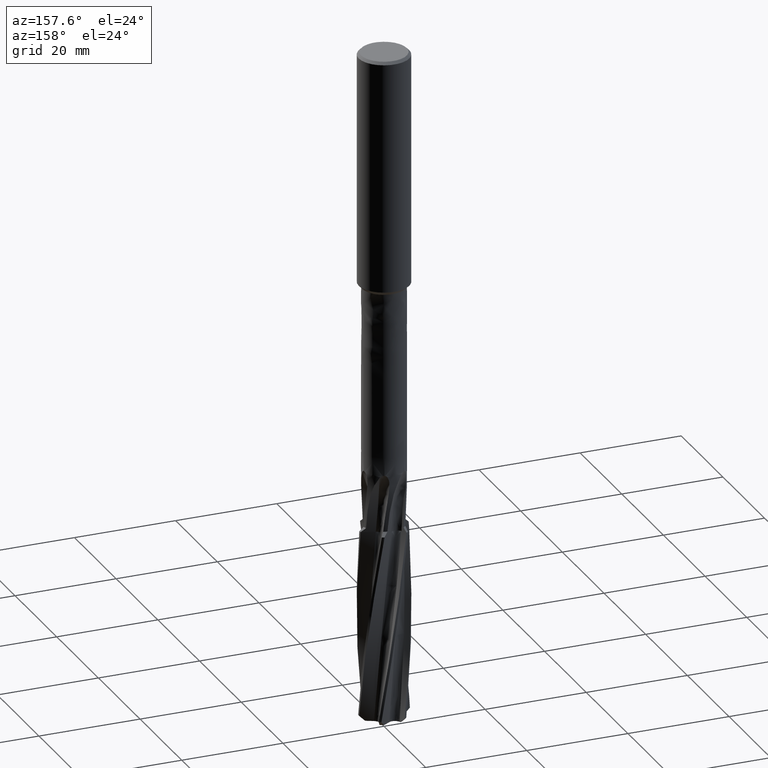
[diagram: clean part render]
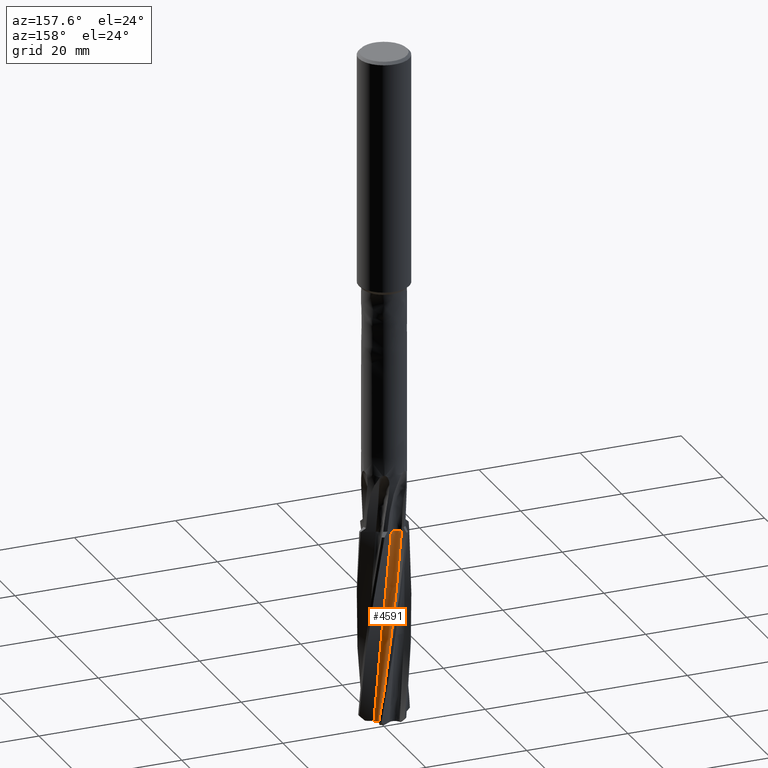
[diagram: same view with one face highlighted and labeled with its STEP entity id]
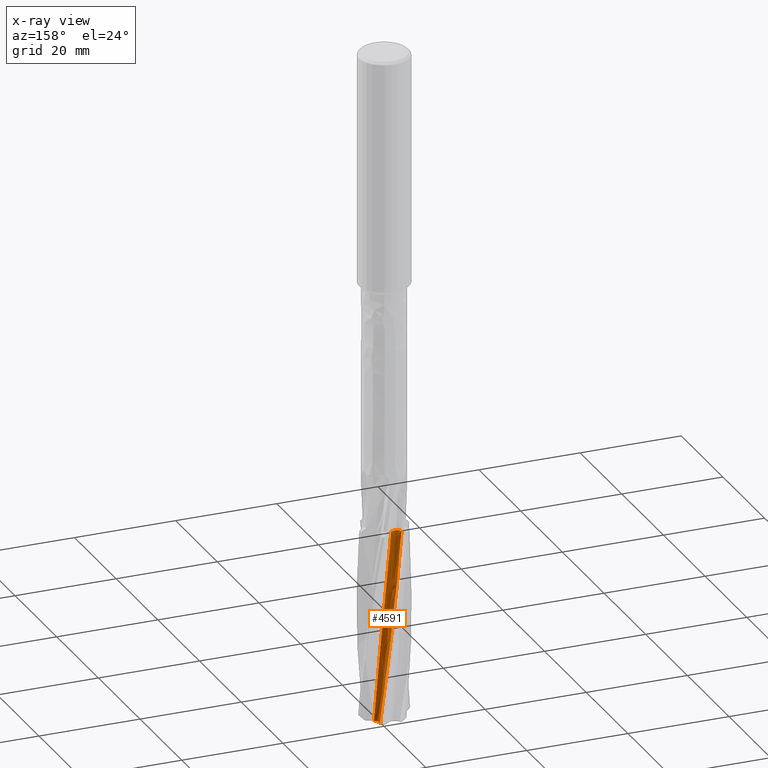
[diagram: x-ray of the same camera — body ghosted, the highlighted face saturated]
A machine part, auxiliary view. The second image highlights one B-rep face of the part: STEP entity #4591.
The next image is the same camera in x-ray: the body ghosted, the highlighted face saturated — about 0% of this face is hidden behind the body in this view.
In plain terms, the highlighted face is a freeform B-spline surface patch.
Its self-contained STEP definition (entity closure, byte-faithful):
#3641 = VERTEX_POINT('', #3642);
#3642 = CARTESIAN_POINT('', (-0.27661707400089, 2.82010910137833, -95.));
#3648 = EDGE_CURVE('', #3641, #3649, #3651, .T.);
#3649 = VERTEX_POINT('', #3650);
#3650 = CARTESIAN_POINT('', (-2.16090540956273, 3.15557365704495, -95.));
#3651 = B_SPLINE_CURVE_WITH_KNOTS('', 3, (#3652, #3653, #3654, #3655, #3656, #3657, #3658, #3659, #3660, #3661, #3662, #3663, #3664, #3665, #3666, #3667, #3668, #3669, #3670, #3671, #3672, #3673, #3674, #3675, #3676, #3677, #3678, #3679, #3680, #3681, #3682, #3683, #3684, #3685, #3686, #3687, #3688, #3689, #3690, #3691, #3692, #3693, #3694, #3695, #3696, #3697, #3698, #3699, #3700, #3701, #3702, #3703, #3704, #3705, #3706, #3707, #3708, #3709), .UNSPECIFIED., .F., .U., (4, 3, 3, 3, 3, 3, 3, 3, 3, 3, 3, 3, 3, 3, 3, 3, 3, 3, 3, 4), (0., 0.132181780226918, 0.264161609050317, 0.395944703751725, 0.527534966261595, 0.658935085210019, 0.790146605647413, 0.921169970287258, 1.05200453455494, 1.09086405534845, 1.10815835505043, 1.24032531467485, 1.37229074739479, 1.50405977109452, 1.63563619688982, 1.76702262867054, 1.89822053065169, 2.02923026666097, 2.16005111334351, 2.1971622963427), .UNSPECIFIED.);
#3652 = CARTESIAN_POINT('', (-0.276617074000886, 2.82010910137834, -95.));
#3653 = CARTESIAN_POINT('', (-0.309664740040039, 2.79096827673463, -95.));
#3654 = CARTESIAN_POINT('', (-0.344340228098947, 2.76357641654165, -95.));
#3655 = CARTESIAN_POINT('', (-0.380340303260003, 2.73817306085881, -95.));
#3656 = CARTESIAN_POINT('', (-0.416285376395114, 2.71280851720683, -95.));
#3657 = CARTESIAN_POINT('', (-0.453655518578435, 2.68935262182036, -95.));
#3658 = CARTESIAN_POINT('', (-0.492124925967068, 2.66800987006412, -95.));
#3659 = CARTESIAN_POINT('', (-0.530536989402815, 2.64669893262044, -95.));
#3660 = CARTESIAN_POINT('', (-0.570156412445319, 2.62743303271986, -95.));
#3661 = CARTESIAN_POINT('', (-0.610638808133471, 2.61037963682731, -95.));
#3662 = CARTESIAN_POINT('', (-0.651061967778511, 2.59335119439113, -95.));
#3663 = CARTESIAN_POINT('', (-0.692462435513561, 2.57847953657634, -95.));
#3664 = CARTESIAN_POINT('', (-0.734481392974172, 2.56589355622461, -95.));
#3665 = CARTESIAN_POINT('', (-0.77643963443599, 2.55332576219672, -95.));
#3666 = CARTESIAN_POINT('', (-0.819135528157474, 2.54300079651158, -95.));
#3667 = CARTESIAN_POINT('', (-0.862200094628772, 2.53500788790865, -95.));
#3668 = CARTESIAN_POINT('', (-0.905202850553933, 2.5270264515226, -95.));
#3669 = CARTESIAN_POINT('', (-0.948696828047242, 2.52134742112806, -95.));
#3670 = CARTESIAN_POINT('', (-0.992307226423857, 2.51801973463794, -95.));
#3671 = CARTESIAN_POINT('', (-1.03585508799532, 2.51469682001163, -95.));
#3672 = CARTESIAN_POINT('', (-1.07964385408409, 2.51370896696819, -95.));
#3673 = CARTESIAN_POINT('', (-1.12329726283057, 2.51506466379024, -95.));
#3674 = CARTESIAN_POINT('', (-1.16688776844645, 2.51641840709763, -95.));
#3675 = CARTESIAN_POINT('', (-1.21046788951439, 2.52011280089533, -95.));
#3676 = CARTESIAN_POINT('', (-1.25366423309878, 2.52611619174798, -95.));
#3677 = CARTESIAN_POINT('', (-1.26649409362621, 2.52789927478094, -95.));
#3678 = CARTESIAN_POINT('', (-1.27929723352474, 2.52988649837834, -95.));
#3679 = CARTESIAN_POINT('', (-1.2920639567889, 2.53207635758662, -95.));
#3680 = CARTESIAN_POINT('', (-1.2977457442591, 2.53305094709982, -95.));
#3681 = CARTESIAN_POINT('', (-1.30342078143895, 2.53406574292223, -95.));
#3682 = CARTESIAN_POINT('', (-1.30908821695109, 2.5351205928127, -95.));
#3683 = CARTESIAN_POINT('', (-1.35240004416674, 2.5431819948519, -95.));
#3684 = CARTESIAN_POINT('', (-1.39533804281387, 2.5536027114388, -95.));
#3685 = CARTESIAN_POINT('', (-1.43752680686344, 2.56629163446502, -95.));
#3686 = CARTESIAN_POINT('', (-1.47965124189276, 2.57896120954387, -95.));
#3687 = CARTESIAN_POINT('', (-1.52115121460268, 2.59392889767512, -95.));
#3688 = CARTESIAN_POINT('', (-1.56166499483303, 2.61106423457477, -95.));
#3689 = CARTESIAN_POINT('', (-1.60211847691017, 2.62817406832059, -95.));
#3690 = CARTESIAN_POINT('', (-1.64170598118759, 2.64749468518473, -95.));
#3691 = CARTESIAN_POINT('', (-1.68008347147446, 2.6688581788657, -95.));
#3692 = CARTESIAN_POINT('', (-1.71840486796933, 2.69019044696725, -95.));
#3693 = CARTESIAN_POINT('', (-1.75563056199583, 2.71362126732865, -95.));
#3694 = CARTESIAN_POINT('', (-1.79143798570451, 2.73894760735286, -95.));
#3695 = CARTESIAN_POINT('', (-1.82719370413132, 2.7642373765933, -95.));
#3696 = CARTESIAN_POINT('', (-1.86163830917815, 2.79149006757793, -95.));
#3697 = CARTESIAN_POINT('', (-1.8944741911566, 2.82047021048906, -95.));
#3698 = CARTESIAN_POINT('', (-1.92726295607613, 2.84940876904129, -95.));
#3699 = CARTESIAN_POINT('', (-1.9585418549032, 2.88015297659738, -95.));
#3700 = CARTESIAN_POINT('', (-1.98804140378726, 2.91243795594792, -95.));
#3701 = CARTESIAN_POINT('', (-2.01749864398192, 2.94467663170348, -95.));
#3702 = CARTESIAN_POINT('', (-2.04526606287668, 2.9785440345026, -95.));
#3703 = CARTESIAN_POINT('', (-2.07110511408433, 3.01374921376711, -95.));
#3704 = CARTESIAN_POINT('', (-2.09690691064866, 3.04890363434138, -95.));
#3705 = CARTESIAN_POINT('', (-2.12085963827838, 3.08549241606467, -95.));
#3706 = CARTESIAN_POINT('', (-2.14275811379077, 3.12320213314254, -95.));
#3707 = CARTESIAN_POINT('', (-2.14897026080519, 3.13389960412529, -95.));
#3708 = CARTESIAN_POINT('', (-2.1550207524491, 3.14469259705015, -95.));
#3709 = CARTESIAN_POINT('', (-2.16090540956273, 3.15557365704495, -95.));
#4519 = EDGE_CURVE('', #4520, #3649, #4522, .T.);
#4520 = VERTEX_POINT('', #4521);
#4521 = CARTESIAN_POINT('', (2.12853466287823, 3.16610765109624, -133.));
#4522 = (
   BOUNDED_CURVE ()
   B_SPLINE_CURVE (3, (#4523, #4524, #4525, #4526, #4527, #4528, #4529, #4530, #4531, #4532, #4533, #4534, #4535, #4536), .UNSPECIFIED., .F., .U.)
   B_SPLINE_CURVE_WITH_KNOTS ((4, 1, 1, 1, 1, 1, 1, 1, 1, 1, 1, 4), (0.0499999999999882, 6.67333333333333, 10.01, 13.3466666666667, 16.6833333333333, 20.02, 23.3566666666667, 26.6933333333333, 30.03, 33.3666666666667, 36.7033333333333, 38.05), .UNSPECIFIED.)
   CURVE ()
   GEOMETRIC_REPRESENTATION_ITEM ()
   RATIONAL_B_SPLINE_CURVE ((1., 1., 1., 1., 1., 1., 1., 1., 1., 1., 1., 1., 1., 1.))
   REPRESENTATION_ITEM ('')
);
#4523 = CARTESIAN_POINT('', (2.12853466287823, 3.16610765109624, -133.));
#4524 = CARTESIAN_POINT('', (1.90264084061207, 3.30360199011623, -130.792222222222));
#4525 = CARTESIAN_POINT('', (1.54470744083736, 3.47642668603337, -127.472222222222));
#4526 = CARTESIAN_POINT('', (1.04293651508844, 3.63478459211356, -123.04));
#4527 = CARTESIAN_POINT('', (0.656404502028679, 3.71674398912458, -119.703333333333));
#4528 = CARTESIAN_POINT('', (0.264399290233103, 3.76091326458889, -116.366666666667));
#4529 = CARTESIAN_POINT('', (-0.129780693772009, 3.76704787695478, -113.03));
#4530 = CARTESIAN_POINT('', (-0.522698110798954, 3.73500742283131, -109.693333333333));
#4531 = CARTESIAN_POINT('', (-0.911418746271927, 3.66542359013572, -106.356666666667));
#4532 = CARTESIAN_POINT('', (-1.29116832167038, 3.5572120428641, -103.02));
#4533 = CARTESIAN_POINT('', (-1.66413260951373, 3.41685879146453, -99.6833333333334));
#4534 = CARTESIAN_POINT('', (-1.93857458517974, 3.26215498219302, -97.01));
#4535 = CARTESIAN_POINT('', (-2.1128006253348, 3.18130893585777, -95.4488888888889));
#4536 = CARTESIAN_POINT('', (-2.16090540956273, 3.15557365704495, -95.));
#4591 = ADVANCED_FACE('', (#4592), #4676, .T.);
#4592 = FACE_OUTER_BOUND('', #4593, .T.);
#4593 = EDGE_LOOP('', (#4594, #4595, #4614, #4675));
#4594 = ORIENTED_EDGE('', *, *, #3648, .F.);
#4595 = ORIENTED_EDGE('', *, *, #4596, .F.);
#4596 = EDGE_CURVE('', #4597, #3641, #4599, .T.);
#4597 = VERTEX_POINT('', #4598);
#4598 = CARTESIAN_POINT('', (2.51209816030452, 1.29585044547165, -133.));
#4599 = (
   BOUNDED_CURVE ()
   B_SPLINE_CURVE (3, (#4600, #4601, #4602, #4603, #4604, #4605, #4606, #4607, #4608, #4609, #4610, #4611, #4612, #4613), .UNSPECIFIED., .F., .U.)
   B_SPLINE_CURVE_WITH_KNOTS ((4, 1, 1, 1, 1, 1, 1, 1, 1, 1, 1, 4), (0.0499999999999975, 6.67333333333333, 10.01, 13.3466666666667, 16.6833333333333, 20.02, 23.3566666666667, 26.6933333333333, 30.03, 33.3666666666667, 36.7033333333333, 38.05), .UNSPECIFIED.)
   CURVE ()
   GEOMETRIC_REPRESENTATION_ITEM ()
   RATIONAL_B_SPLINE_CURVE ((1., 1., 1., 1., 1., 1., 1., 1., 1., 1., 1., 1., 1., 1.))
   REPRESENTATION_ITEM ('')
);
#4600 = CARTESIAN_POINT('', (2.51209816030453, 1.29585044547164, -133.));
#4601 = CARTESIAN_POINT('', (2.41451272689025, 1.46575167356391, -130.792222222222));
#4602 = CARTESIAN_POINT('', (2.24381050856643, 1.7057224165937, -127.472222222222));
#4603 = CARTESIAN_POINT('', (1.97455670160103, 1.98764268581112, -123.04));
#4604 = CARTESIAN_POINT('', (1.75285259860201, 2.17882652369743, -119.703333333333));
#4605 = CARTESIAN_POINT('', (1.51410594712514, 2.34742844194509, -116.366666666667));
#4606 = CARTESIAN_POINT('', (1.26037099033213, 2.49211231014483, -113.03));
#4607 = CARTESIAN_POINT('', (0.993829333289406, 2.61156002616567, -109.693333333333));
#4608 = CARTESIAN_POINT('', (0.716611517970616, 2.70513436292957, -106.356666666667));
#4609 = CARTESIAN_POINT('', (0.431430235734816, 2.77042714710992, -103.02));
#4610 = CARTESIAN_POINT('', (0.139181510001969, 2.81242967821484, -99.6833333333334));
#4611 = CARTESIAN_POINT('', (-0.0942231454899924, 2.80994785556778, -97.01));
#4612 = CARTESIAN_POINT('', (-0.236198535234005, 2.81964714404148, -95.4488888888889));
#4613 = CARTESIAN_POINT('', (-0.27661707400089, 2.82010910137833, -95.));
#4614 = ORIENTED_EDGE('', *, *, #4615, .T.);
#4615 = EDGE_CURVE('', #4597, #4520, #4616, .T.);
#4616 = B_SPLINE_CURVE_WITH_KNOTS('', 3, (#4617, #4618, #4619, #4620, #4621, #4622, #4623, #4624, #4625, #4626, #4627, #4628, #4629, #4630, #4631, #4632, #4633, #4634, #4635, #4636, #4637, #4638, #4639, #4640, #4641, #4642, #4643, #4644, #4645, #4646, #4647, #4648, #4649, #4650, #4651, #4652, #4653, #4654, #4655, #4656, #4657, #4658, #4659, #4660, #4661, #4662, #4663, #4664, #4665, #4666, #4667, #4668, #4669, #4670, #4671, #4672, #4673, #4674), .UNSPECIFIED., .F., .U., (4, 3, 3, 3, 3, 3, 3, 3, 3, 3, 3, 3, 3, 3, 3, 3, 3, 3, 3, 4), (0., 0.132183809767796, 0.264164662226767, 0.395947814218439, 0.527537194205253, 0.658935505541677, 0.790144296942696, 0.921164004062935, 1.05199396450168, 1.09085298400038, 1.10815275583711, 1.24031745442303, 1.37227974342849, 1.50404475097536, 1.6356162879218, 1.76699694787222, 1.89818817482433, 2.02919030220473, 2.16000256547323, 2.1917214957921), .UNSPECIFIED.);
#4617 = CARTESIAN_POINT('', (2.51209816030453, 1.29585044547165, -133.));
#4618 = CARTESIAN_POINT('', (2.47280795977387, 1.3157922520461, -133.));
#4619 = CARTESIAN_POINT('', (2.43454392034716, 1.33789844217683, -133.));
#4620 = CARTESIAN_POINT('', (2.39764232649991, 1.36197473505437, -133.));
#4621 = CARTESIAN_POINT('', (2.3607973919984, 1.38601406077521, -133.));
#4622 = CARTESIAN_POINT('', (2.32520302219485, 1.412087686971, -133.));
#4623 = CARTESIAN_POINT('', (2.29117108132028, 1.43996716651855, -133.));
#4624 = CARTESIAN_POINT('', (2.25719011852691, 1.46780488405266, -133.));
#4625 = CARTESIAN_POINT('', (2.22466787477393, 1.49752415085747, -133.));
#4626 = CARTESIAN_POINT('', (2.19388844632935, 1.52886535591564, -133.));
#4627 = CARTESIAN_POINT('', (2.16315427550281, 1.56016047732771, -133.));
#4628 = CARTESIAN_POINT('', (2.1340684895756, 1.59316368074925, -133.));
#4629 = CARTESIAN_POINT('', (2.10688442081906, 1.62758751386572, -133.));
#4630 = CARTESIAN_POINT('', (2.07973982351022, 1.66196136334874, -133.));
#4631 = CARTESIAN_POINT('', (2.05441277281065, 1.69785128665395, -133.));
#4632 = CARTESIAN_POINT('', (2.03112322428964, 1.7349455937782, -133.));
#4633 = CARTESIAN_POINT('', (2.00786726702019, 1.77198639861144, -133.));
#4634 = CARTESIAN_POINT('', (1.98657574493667, 1.81033510093076, -133.));
#4635 = CARTESIAN_POINT('', (1.96743303475343, 1.84965961514332, -133.));
#4636 = CARTESIAN_POINT('', (1.94831791102646, 1.88892745901079, -133.));
#4637 = CARTESIAN_POINT('', (1.93129033565058, 1.92928139860364, -133.));
#4638 = CARTESIAN_POINT('', (1.91649733737361, 1.97037298799946, -133.));
#4639 = CARTESIAN_POINT('', (1.90172576276179, 2.0114050673193, -133.));
#4640 = CARTESIAN_POINT('', (1.88913985545621, 2.05329049824512, -133.));
#4641 = CARTESIAN_POINT('', (1.8788479776684, 2.09566865537144, -133.));
#4642 = CARTESIAN_POINT('', (1.87579109162873, 2.10825578471527, -133.));
#4643 = CARTESIAN_POINT('', (1.87293436908078, 2.12089321612737, -133.));
#4644 = CARTESIAN_POINT('', (1.87027998414494, 2.13357133183871, -133.));
#4645 = CARTESIAN_POINT('', (1.86909826998053, 2.13921554293707, -133.));
#4646 = CARTESIAN_POINT('', (1.86795655393681, 2.1448682764772, -133.));
#4647 = CARTESIAN_POINT('', (1.86685500825495, 2.15052867967838, -133.));
#4648 = CARTESIAN_POINT('', (1.85843955316137, 2.19377234150352, -133.));
#4649 = CARTESIAN_POINT('', (1.85236145298549, 2.23753658610807, -133.));
#4650 = CARTESIAN_POINT('', (1.84867410985274, 2.28143690129031, -133.));
#4651 = CARTESIAN_POINT('', (1.84499241386772, 2.32526998335756, -133.));
#4652 = CARTESIAN_POINT('', (1.84368337870263, 2.36936679465926, -133.));
#4653 = CARTESIAN_POINT('', (1.84475847040301, 2.41334108426894, -133.));
#4654 = CARTESIAN_POINT('', (1.84583195485891, 2.45724963303659, -133.));
#4655 = CARTESIAN_POINT('', (1.84928554951504, 2.50116393929782, -133.));
#4656 = CARTESIAN_POINT('', (1.85508909397441, 2.54470049744688, -133.));
#4657 = CARTESIAN_POINT('', (1.86088411708769, 2.58817313085445, -133.));
#4658 = CARTESIAN_POINT('', (1.86903900627888, 2.63139539754432, -133.));
#4659 = CARTESIAN_POINT('', (1.87948275306268, 2.67399094075471, -133.));
#4660 = CARTESIAN_POINT('', (1.88991134861348, 2.7165246886139, -133.));
#4661 = CARTESIAN_POINT('', (1.90265234903218, 2.75855671951344, -133.));
#4662 = CARTESIAN_POINT('', (1.91759513335535, 2.79972209949205, -133.));
#4663 = CARTESIAN_POINT('', (1.93251637222092, 2.8408281246055, -133.));
#4664 = CARTESIAN_POINT('', (1.94967612161166, 2.88118870980436, -133.));
#4665 = CARTESIAN_POINT('', (1.9689258241337, 2.92045444069943, -133.));
#4666 = CARTESIAN_POINT('', (1.9881477800557, 2.95966357380921, -133.));
#4667 = CARTESIAN_POINT('', (2.00950900097549, 2.99789391872865, -133.));
#4668 = CARTESIAN_POINT('', (2.03282508761424, 3.03481545461954, -133.));
#4669 = CARTESIAN_POINT('', (2.05610738176297, 3.07168347935941, -133.));
#4670 = CARTESIAN_POINT('', (2.0814057110953, 3.1073523523657, -133.));
#4671 = CARTESIAN_POINT('', (2.10850232071704, 3.14151505448445, -133.));
#4672 = CARTESIAN_POINT('', (2.11507261811114, 3.14979871490691, -133.));
#4673 = CARTESIAN_POINT('', (2.12175119440772, 3.1579976330105, -133.));
#4674 = CARTESIAN_POINT('', (2.12853466287823, 3.16610765109624, -133.));
#4675 = ORIENTED_EDGE('', *, *, #4519, .T.);
#4676 = (
   BOUNDED_SURFACE ()
   B_SPLINE_SURFACE (3, 2, ((#4677, #4678, #4679, #4680, #4681), (#4682, #4683, #4684, #4685, #4686), (#4687, #4688, #4689, #4690, #4691), (#4692, #4693, #4694, #4695, #4696), (#4697, #4698, #4699, #4700, #4701), (#4702, #4703, #4704, #4705, #4706), (#4707, #4708, #4709, #4710, #4711), (#4712, #4713, #4714, #4715, #4716), (#4717, #4718, #4719, #4720, #4721), (#4722, #4723, #4724, #4725, #4726), (#4727, #4728, #4729, #4730, #4731), (#4732, #4733, #4734, #4735, #4736), (#4737, #4738, #4739, #4740, #4741), (#4742, #4743, #4744, #4745, #4746)), .UNSPECIFIED., .F., .F., .U.)
   B_SPLINE_SURFACE_WITH_KNOTS ((4, 1, 1, 1, 1, 1, 1, 1, 1, 1, 1, 4), (3, 2, 3), (0.049999999979657, 6.67333333333333, 10.01, 13.3466666666667, 16.6833333333333, 20.02, 23.3566666666667, 26.6933333333333, 30.03, 33.3666666666667, 36.7033333333333, 38.05), (0., 0.5, 1.), .UNSPECIFIED.)
   GEOMETRIC_REPRESENTATION_ITEM ()
   RATIONAL_B_SPLINE_SURFACE (((1., 0.900698239322588, 1., 0.900698239322588, 1.), (1., 0.900698239322588, 1., 0.900698239322588, 1.), (1., 0.900698239322588, 1., 0.900698239322588, 1.), (1., 0.900698239322588, 1., 0.900698239322588, 1.), (1., 0.900698239322588, 1., 0.900698239322588, 1.), (1., 0.900698239322588, 1., 0.900698239322588, 1.), (1., 0.900698239322588, 1., 0.900698239322588, 1.), (1., 0.900698239322588, 1., 0.900698239322588, 1.), (1., 0.900698239322588, 1., 0.900698239322588, 1.), (1., 0.900698239322588, 1., 0.900698239322588, 1.), (1., 0.900698239322588, 1., 0.900698239322588, 1.), (1., 0.900698239322588, 1., 0.900698239322588, 1.), (1., 0.900698239322588, 1., 0.900698239322588, 1.), (1., 0.900698239322588, 1., 0.900698239322588, 1.)))
   REPRESENTATION_ITEM ('')
   SURFACE ()
);
#4677 = CARTESIAN_POINT('', (2.12853466288032, 3.16610765109498, -133.00000000002));
#4678 = CARTESIAN_POINT('', (1.75106359862989, 2.7148197633108, -133.00000000002));
#4679 = CARTESIAN_POINT('', (1.86926391829541, 2.13847451396973, -133.00000000002));
#4680 = CARTESIAN_POINT('', (1.98746423796093, 1.56212926462865, -133.00000000002));
#4681 = CARTESIAN_POINT('', (2.51209816030542, 1.29585044547008, -133.00000000002));
#4682 = CARTESIAN_POINT('', (1.90264084061354, 3.30360199011552, -130.792222222236));
#4683 = CARTESIAN_POINT('', (1.55759960578154, 2.8275866123226, -130.792222222236));
#4684 = CARTESIAN_POINT('', (1.71533990430303, 2.26122798755197, -130.792222222236));
#4685 = CARTESIAN_POINT('', (1.87308020282453, 1.69486936278135, -130.792222222236));
#4686 = CARTESIAN_POINT('', (2.41451272689095, 1.46575167356293, -130.792222222236));
#4687 = CARTESIAN_POINT('', (1.54470744083813, 3.47642668603313, -127.472222222229));
#4688 = CARTESIAN_POINT('', (1.25177766042409, 2.96813756157068, -127.472222222229));
#4689 = CARTESIAN_POINT('', (1.46721579945299, 2.42247090641208, -127.472222222229));
#4690 = CARTESIAN_POINT('', (1.68265393848188, 1.87680425125348, -127.472222222229));
#4691 = CARTESIAN_POINT('', (2.24381050856684, 1.70572241659327, -127.472222222229));
#4692 = CARTESIAN_POINT('', (1.04293651508844, 3.63478459211356, -123.04));
#4693 = CARTESIAN_POINT('', (0.824411679175678, 3.09412275069517, -123.04));
#4694 = CARTESIAN_POINT('', (1.11150313754403, 2.58653352188061, -123.04));
#4695 = CARTESIAN_POINT('', (1.39859459591239, 2.07894429306605, -123.04));
#4696 = CARTESIAN_POINT('', (1.97455670160103, 1.98764268581112, -123.04));
#4697 = CARTESIAN_POINT('', (0.656404502028679, 3.71674398912458, -119.703333333333));
#4698 = CARTESIAN_POINT('', (0.495841462160371, 3.15728359501841, -119.703333333333));
#4699 = CARTESIAN_POINT('', (0.833726887602675, 2.68335336637831, -119.703333333333));
#4700 = CARTESIAN_POINT('', (1.17161231304498, 2.20942313773821, -119.703333333333));
#4701 = CARTESIAN_POINT('', (1.75285259860201, 2.17882652369743, -119.703333333333));
#4702 = CARTESIAN_POINT('', (0.264399290233103, 3.76091326458889, -116.366666666667));
#4703 = CARTESIAN_POINT('', (0.16324640724599, 3.18836199997669, -116.366666666667));
#4704 = CARTESIAN_POINT('', (0.548360546950098, 2.75277738621536, -116.366666666667));
#4705 = CARTESIAN_POINT('', (0.933474686654205, 2.31719277245403, -116.366666666667));
#4706 = CARTESIAN_POINT('', (1.51410594712514, 2.34742844194509, -116.366666666667));
#4707 = CARTESIAN_POINT('', (-0.129780693772009, 3.76704787695478, -113.03));
#4708 = CARTESIAN_POINT('', (-0.170576998642273, 3.18720407898129, -113.03));
#4709 = CARTESIAN_POINT('', (0.2578171904496, 2.79431530681833, -113.03));
#4710 = CARTESIAN_POINT('', (0.686211379541472, 2.40142653465538, -113.03));
#4711 = CARTESIAN_POINT('', (1.26037099033213, 2.49211231014483, -113.03));
#4712 = CARTESIAN_POINT('', (-0.522698110798954, 3.73500742283131, -109.693333333333));
#4713 = CARTESIAN_POINT('', (-0.502716339011405, 3.15374635030881, -109.693333333333));
#4714 = CARTESIAN_POINT('', (-0.0353777369908086, 2.80754072254517, -109.693333333333));
#4715 = CARTESIAN_POINT('', (0.431960865029787, 2.46133509478153, -109.693333333333));
#4716 = CARTESIAN_POINT('', (0.993829333289406, 2.61156002616567, -109.693333333333));
#4717 = CARTESIAN_POINT('', (-0.911418746271927, 3.66542359013572, -106.356666666667));
#4718 = CARTESIAN_POINT('', (-0.830697598888693, 3.08857090065266, -106.356666666667));
#4719 = CARTESIAN_POINT('', (-0.328997883064756, 2.79264468663829, -106.356666666667));
#4720 = CARTESIAN_POINT('', (0.17270183275918, 2.49671847262392, -106.356666666667));
#4721 = CARTESIAN_POINT('', (0.716611517970616, 2.70513436292957, -106.356666666667));
#4722 = CARTESIAN_POINT('', (-1.29116832167038, 3.5572120428641, -103.02));
#4723 = CARTESIAN_POINT('', (-1.15046125881259, 2.99083662966332, -103.02));
#4724 = CARTESIAN_POINT('', (-0.619619034493747, 2.7483781402334, -103.02));
#4725 = CARTESIAN_POINT('', (-0.0887768101749032, 2.50591965080349, -103.02));
#4726 = CARTESIAN_POINT('', (0.431430235734816, 2.77042714710992, -103.02));
#4727 = CARTESIAN_POINT('', (-1.66413260951373, 3.41685879146453, -99.6833333333334));
#4728 = CARTESIAN_POINT('', (-1.4639623722419, 2.86599956691776, -99.6833333333333));
#4729 = CARTESIAN_POINT('', (-0.908246547313274, 2.67973649735857, -99.6833333333334));
#4730 = CARTESIAN_POINT('', (-0.352530722384645, 2.49347342779938, -99.6833333333333));
#4731 = CARTESIAN_POINT('', (0.139181510001969, 2.81242967821484, -99.6833333333334));
#4732 = CARTESIAN_POINT('', (-1.93857458517974, 3.26215498219302, -97.01));
#4733 = CARTESIAN_POINT('', (-1.69382031224672, 2.73060044426468, -97.01));
#4734 = CARTESIAN_POINT('', (-1.12545827777169, 2.59124665465501, -97.01));
#4735 = CARTESIAN_POINT('', (-0.557096243296662, 2.45189286504533, -97.01));
#4736 = CARTESIAN_POINT('', (-0.0942231454899926, 2.80994785556778, -97.01));
#4737 = CARTESIAN_POINT('', (-2.1128006253348, 3.18130893585777, -95.4488888888889));
#4738 = CARTESIAN_POINT('', (-1.84002256221373, 2.65934635273202, -95.4488888888889));
#4739 = CARTESIAN_POINT('', (-1.26172205024124, 2.54789534216802, -95.4488888888889));
#4740 = CARTESIAN_POINT('', (-0.683421538268743, 2.43644433160402, -95.4488888888889));
#4741 = CARTESIAN_POINT('', (-0.236198535234005, 2.81964714404148, -95.4488888888889));
#4742 = CARTESIAN_POINT('', (-2.16090540956274, 3.15557365704495, -95.));
#4743 = CARTESIAN_POINT('', (-1.88033482166961, 2.63678295425754, -95.));
#4744 = CARTESIAN_POINT('', (-1.2996656883955, 2.5334049790789, -95.));
#4745 = CARTESIAN_POINT('', (-0.718996555121396, 2.43002700390026, -95.));
#4746 = CARTESIAN_POINT('', (-0.27661707400089, 2.82010910137833, -95.));